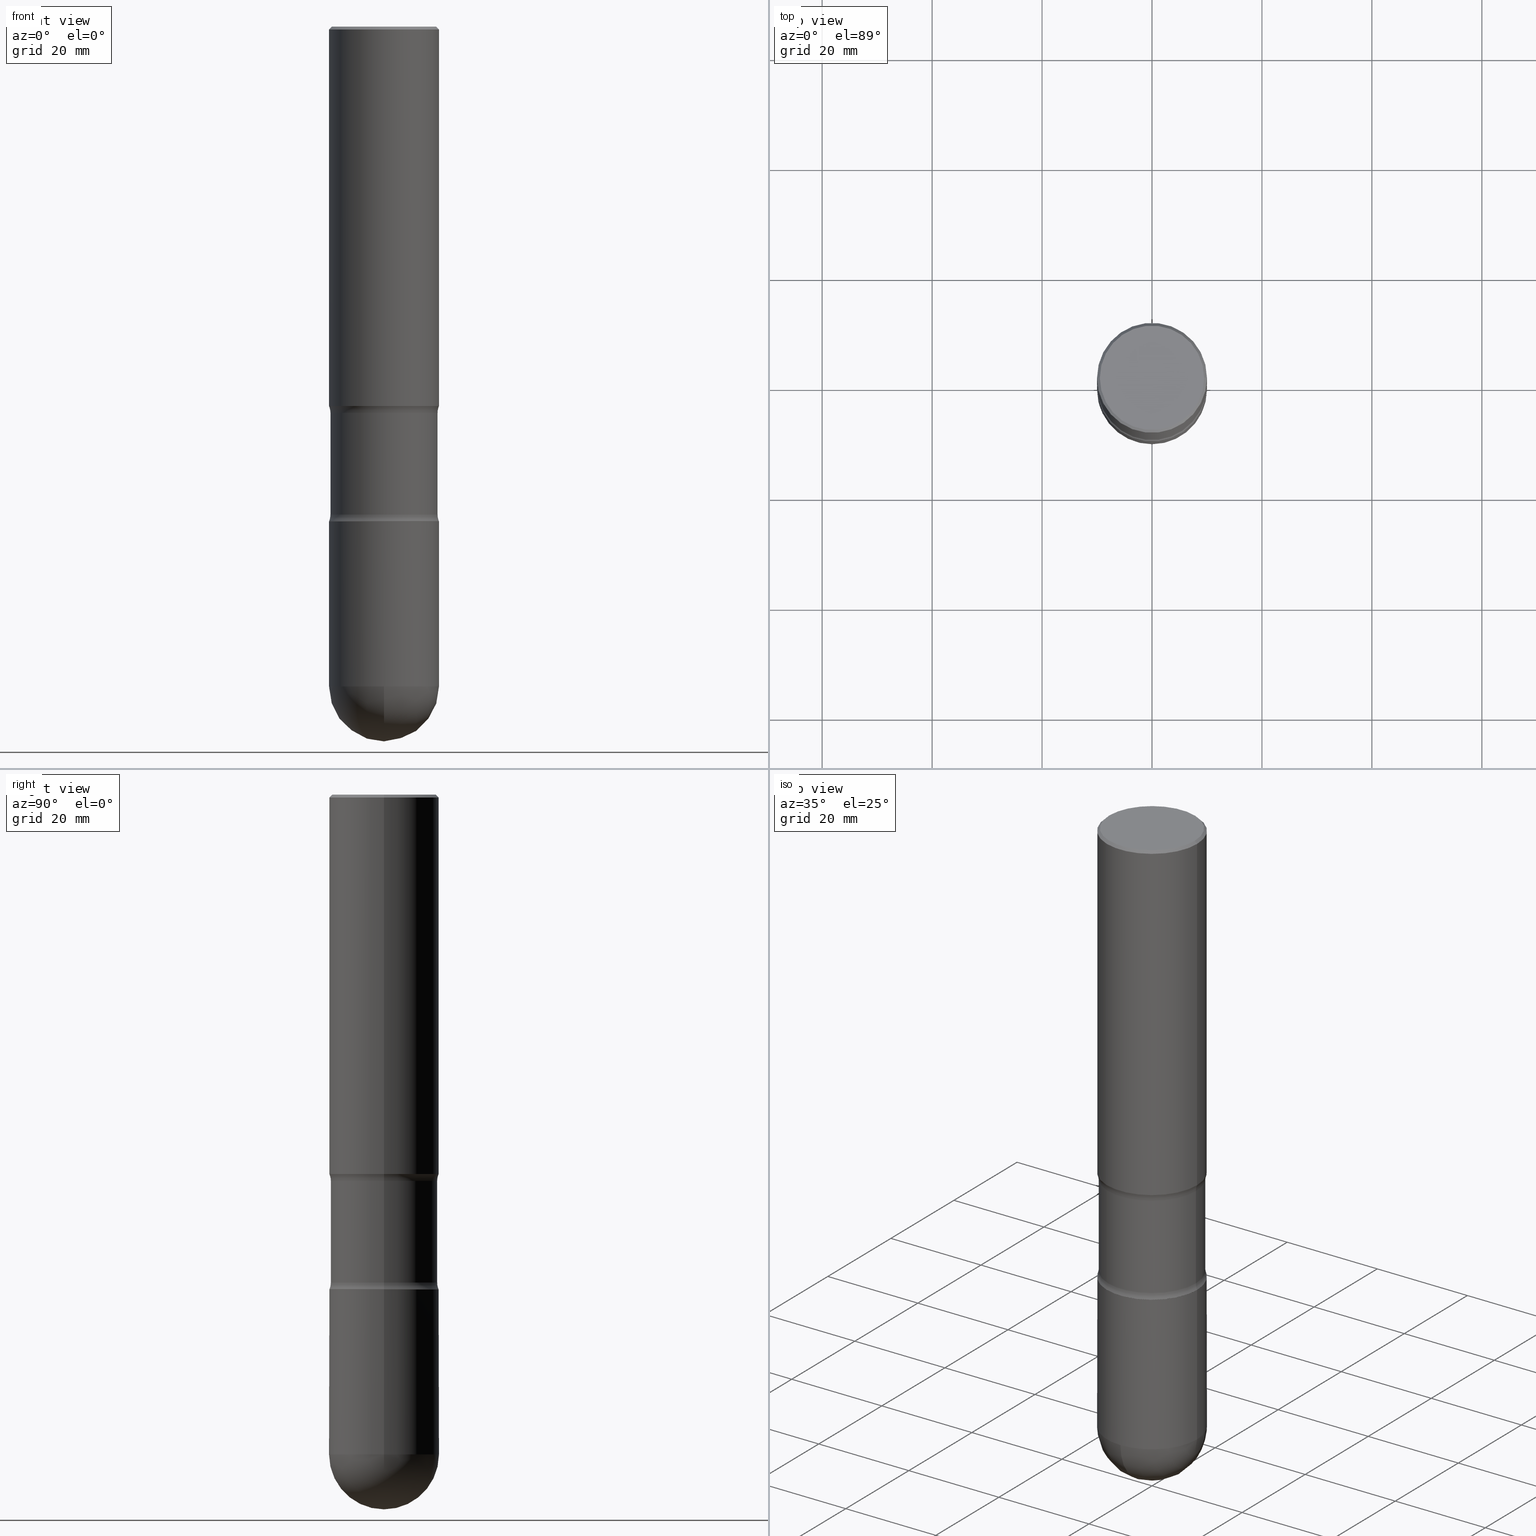
[diagram: canonical four-view strip — front | top / right | iso, engineering-drawing reading convention]
A machine part, canonical four-view strip (front | top / right | iso — engineering-drawing reading convention). The complete STEP part file that produces these views, byte-faithful:
ISO-10303-21;
HEADER;
FILE_DESCRIPTION (( 'STEP AP203' ),
    '1' );
FILE_NAME ('44941.STEP',
    '2024-02-29T19:26:36',
    ( '' ),
    ( '' ),
    'SwSTEP 2.0',
    'SolidWorks 2023',
    '' );
FILE_SCHEMA (( 'CONFIG_CONTROL_DESIGN' ));
ENDSEC;

DATA;
#1 = CARTESIAN_POINT ( 'NONE',  ( 8.665029620955795190E-29, -1.237136582792291865E-14, -3.543300000000000338 ) ) ;
#2 = EDGE_CURVE ( 'NONE', #97, #558, #458, .T. ) ;
#3 = FACE_OUTER_BOUND ( 'NONE', #158, .T. ) ;
#4 = PERSON_AND_ORGANIZATION_ROLE ( 'design_supplier' ) ;
#5 = CARTESIAN_POINT ( 'NONE',  ( -0.3936999999999992172, -1.163585338188923205E-14, -4.724399999999998379 ) ) ;
#6 = FACE_OUTER_BOUND ( 'NONE', #95, .T. ) ;
#7 = PERSON_AND_ORGANIZATION ( #151, #236 ) ;
#8 = DIRECTION ( 'NONE',  ( -2.445468806185136597E-29, 3.491481338843145583E-15, 1.000000000000000000 ) ) ;
#9 = AXIS2_PLACEMENT_3D ( 'NONE', #313, #453, #484 ) ;
#10 = SECURITY_CLASSIFICATION ( '', '', #346 ) ;
#11 = EDGE_CURVE ( 'NONE', #360, #491, #340, .T. ) ;
#12 = CARTESIAN_POINT ( 'NONE',  ( 0.3935498943860055165, -1.507009244066200089E-14, -3.542950105613994261 ) ) ;
#13 = DIRECTION ( 'NONE',  ( -1.000000000000000000, 6.982962677686266711E-15, 0.000000000000000000 ) ) ;
#14 = DIRECTION ( 'NONE',  ( -1.000000000000000000, 6.982962677686265922E-15, -4.883557194083112340E-29 ) ) ;
#15 = VECTOR ( 'NONE', #81, 39.37007874015748143 ) ;
#16 = LOCAL_TIME ( 14, 26, 36.00000000000000000, #88 ) ;
#17 = PLANE ( 'NONE',  #523 ) ;
#18 = ORIENTED_EDGE ( 'NONE', *, *, #221, .T. ) ;
#19 = ADVANCED_FACE ( 'NONE', ( #248 ), #119, .T. ) ;
#20 = CARTESIAN_POINT ( 'NONE',  ( 0.000000000000000000, 0.000000000000000000, 0.000000000000000000 ) ) ;
#21 = ORIENTED_EDGE ( 'NONE', *, *, #153, .T. ) ;
#22 = CC_DESIGN_PERSON_AND_ORGANIZATION_ASSIGNMENT ( #296, #4, ( #351 ) ) ;
#23 = EDGE_LOOP ( 'NONE', ( #98, #495, #455, #517 ) ) ;
#24 = LINE ( 'NONE', #452, #293 ) ;
#25 = EDGE_LOOP ( 'NONE', ( #259, #551, #366, #364 ) ) ;
#26 = ADVANCED_FACE ( 'NONE', ( #6 ), #77, .F. ) ;
#27 = APPROVAL_ROLE ( '' ) ;
#28 = ORIENTED_EDGE ( 'NONE', *, *, #2, .T. ) ;
#29 = CARTESIAN_POINT ( 'NONE',  ( -0.5084999999999878506, -6.106449497829532590E-15, -2.765956647682592084 ) ) ;
#30 = ORIENTED_EDGE ( 'NONE', *, *, #107, .T. ) ;
#31 = AXIS2_PLACEMENT_3D ( 'NONE', #76, #525, #206 ) ;
#32 = AXIS2_PLACEMENT_3D ( 'NONE', #343, #8, #434 ) ;
#33 = CYLINDRICAL_SURFACE ( 'NONE', #324, 0.3936999999999998279 ) ;
#34 = AXIS2_PLACEMENT_3D ( 'NONE', #477, #234, #553 ) ;
#35 = ADVANCED_FACE ( 'NONE', ( #298 ), #545, .T. ) ;
#36 = DIRECTION ( 'NONE',  ( 0.000000000000000000, 0.000000000000000000, 1.000000000000000000 ) ) ;
#37 = DIRECTION ( 'NONE',  ( 2.445468806185136597E-29, -3.491481338843145583E-15, -1.000000000000000000 ) ) ;
#38 = CARTESIAN_POINT ( 'NONE',  ( -0.3834999999999994524, -9.693399641030237513E-15, -3.543300000000000338 ) ) ;
#39 = DATE_AND_TIME ( #429, #314 ) ;
#40 = EDGE_CURVE ( 'NONE', #457, #244, #548, .T. ) ;
#41 = DIRECTION ( 'NONE',  ( 1.000000000000000000, -6.982962677686265922E-15, 0.000000000000000000 ) ) ;
#42 = AXIS2_PLACEMENT_3D ( 'NONE', #74, #526, #440 ) ;
#43 = AXIS2_PLACEMENT_3D ( 'NONE', #450, #463, #399 ) ;
#44 = CALENDAR_DATE ( 2024, 29, 2 ) ;
#45 = DIRECTION ( 'NONE',  ( -6.982962677686265133E-15, -1.000000000000000000, 4.163344669033682734E-15 ) ) ;
#46 = CC_DESIGN_PERSON_AND_ORGANIZATION_ASSIGNMENT ( #522, #303, ( #10 ) ) ;
#47 = DIRECTION ( 'NONE',  ( 6.860497997771531562E-15, 1.000000000000000000, -3.491481338843145583E-15 ) ) ;
#48 = ORIENTED_EDGE ( 'NONE', *, *, #114, .T. ) ;
#49 = FACE_OUTER_BOUND ( 'NONE', #243, .T. ) ;
#50 = AXIS2_PLACEMENT_3D ( 'NONE', #508, #279, #192 ) ;
#51 = AXIS2_PLACEMENT_3D ( 'NONE', #271, #415, #106 ) ;
#52 = AXIS2_PLACEMENT_3D ( 'NONE', #57, #460, #363 ) ;
#53 = PRODUCT_DEFINITION ( 'UNKNOWN', '', #351, #61 ) ;
#54 = CARTESIAN_POINT ( 'NONE',  ( -0.3936999999999996613, 2.679362779428216763E-15, -0.02000000000000033348 ) ) ;
#55 = ORIENTED_EDGE ( 'NONE', *, *, #232, .T. ) ;
#56 = FACE_OUTER_BOUND ( 'NONE', #412, .T. ) ;
#57 = CARTESIAN_POINT ( 'NONE',  ( 8.665029620955795190E-29, -1.237136582792291865E-14, -3.543300000000000338 ) ) ;
#58 = EDGE_CURVE ( 'NONE', #409, #287, #479, .T. ) ;
#59 = AXIS2_PLACEMENT_3D ( 'NONE', #520, #447, #220 ) ;
#60 = CARTESIAN_POINT ( 'NONE',  ( 0.3931999999999993833, -1.511706675278915255E-14, -3.543300000000000338 ) ) ;
#61 = DESIGN_CONTEXT ( 'detailed design', #138, 'design' ) ;
#62 = DIRECTION ( 'NONE',  ( -0.7071067811864094610, 7.493145998869855600E-15, 0.7071067811866855735 ) ) ;
#63 = EDGE_CURVE ( 'NONE', #287, #409, #349, .T. ) ;
#64 = AXIS2_PLACEMENT_3D ( 'NONE', #67, #466, #374 ) ;
#65 = CONICAL_SURFACE ( 'NONE', #229, 0.3936999999999996613, 0.7853981633974397303 ) ;
#66 = CARTESIAN_POINT ( 'NONE',  ( 4.890937612370354609E-31, -6.982962677686407473E-17, -0.02000000000000033348 ) ) ;
#67 = CARTESIAN_POINT ( 'NONE',  ( 8.664173965149357956E-29, -1.237014417820361336E-14, -3.542950105613994261 ) ) ;
#68 = ORIENTED_EDGE ( 'NONE', *, *, #496, .F. ) ;
#69 = VERTEX_POINT ( 'NONE', #162 ) ;
#70 = DIRECTION ( 'NONE',  ( 2.445468806185136877E-29, -3.491481338843145188E-15, -1.000000000000000000 ) ) ;
#71 = ADVANCED_BREP_SHAPE_REPRESENTATION ( '44941', ( #519, #301, #498 ), #191 ) ;
#72 = DIRECTION ( 'NONE',  ( -2.445468806185136877E-29, 3.491481338843145188E-15, 1.000000000000000000 ) ) ;
#73 = EDGE_CURVE ( 'NONE', #423, #360, #276, .T. ) ;
#74 = CARTESIAN_POINT ( 'NONE',  ( 0.000000000000000000, 0.000000000000000000, 0.000000000000000000 ) ) ;
#75 = ORIENTED_EDGE ( 'NONE', *, *, #73, .F. ) ;
#76 = CARTESIAN_POINT ( 'NONE',  ( 8.665029620955795190E-29, -1.237136582792291865E-14, -3.543300000000000338 ) ) ;
#77 = TOROIDAL_SURFACE ( 'NONE', #155, 0.5084999999999878506, 0.1249999999999883843 ) ;
#78 = AXIS2_PLACEMENT_3D ( 'NONE', #483, #530, #528 ) ;
#79 = DIRECTION ( 'NONE',  ( 2.438088387897960049E-29, -3.491481338843145188E-15, -1.000000000000000000 ) ) ;
#80 = COORDINATED_UNIVERSAL_TIME_OFFSET ( 5, 0, .BEHIND. ) ;
#81 = DIRECTION ( 'NONE',  ( 2.445468806185136877E-29, -3.491481338843145188E-15, -1.000000000000000000 ) ) ;
#82 = CC_DESIGN_PERSON_AND_ORGANIZATION_ASSIGNMENT ( #7, #178, ( #351 ) ) ;
#83 = FACE_OUTER_BOUND ( 'NONE', #147, .T. ) ;
#84 = CARTESIAN_POINT ( 'NONE',  ( 1.145236913752607900E-28, -1.663979747067784844E-14, -4.724399999999999267 ) ) ;
#85 = AXIS2_PLACEMENT_3D ( 'NONE', #390, #257, #441 ) ;
#86 = APPROVAL_ROLE ( '' ) ;
#87 = CARTESIAN_POINT ( 'NONE',  ( 8.665029620955795190E-29, -1.237136582792291865E-14, -3.543300000000000338 ) ) ;
#88 = COORDINATED_UNIVERSAL_TIME_OFFSET ( 5, 0, .BEHIND. ) ;
#89 = DIRECTION ( 'NONE',  ( 1.000000000000000000, -6.982962677686267499E-15, 0.000000000000000000 ) ) ;
#90 = ADVANCED_FACE ( 'NONE', ( #108 ), #103, .F. ) ;
#91 = CARTESIAN_POINT ( 'NONE',  ( 4.890937612370354609E-31, -6.982962677686407473E-17, -0.02000000000000033348 ) ) ;
#92 = AXIS2_PLACEMENT_3D ( 'NONE', #375, #462, #327 ) ;
#93 = FACE_OUTER_BOUND ( 'NONE', #426, .T. ) ;
#94 = ORIENTED_EDGE ( 'NONE', *, *, #554, .F. ) ;
#95 = EDGE_LOOP ( 'NONE', ( #371, #213, #321, #534 ) ) ;
#96 = DIRECTION ( 'NONE',  ( -1.000000000000000000, 6.982962677686266711E-15, -4.876176775795935793E-29 ) ) ;
#97 = VERTEX_POINT ( 'NONE', #425 ) ;
#98 = ORIENTED_EDGE ( 'NONE', *, *, #395, .F. ) ;
#99 = EDGE_CURVE ( 'NONE', #270, #491, #459, .T. ) ;
#100 = LINE ( 'NONE', #401, #157 ) ;
#101 = ORIENTED_EDGE ( 'NONE', *, *, #99, .F. ) ;
#102 = ORIENTED_EDGE ( 'NONE', *, *, #489, .T. ) ;
#103 = TOROIDAL_SURFACE ( 'NONE', #468, 0.5084999999999878506, 0.1249999999999883843 ) ;
#104 = CC_DESIGN_SECURITY_CLASSIFICATION ( #10, ( #351 ) ) ;
#105 = ORIENTED_EDGE ( 'NONE', *, *, #344, .F. ) ;
#106 = DIRECTION ( 'NONE',  ( 7.105427357601001070E-15, 1.000000000000000000, 0.000000000000000000 ) ) ;
#107 = EDGE_CURVE ( 'NONE', #376, #457, #539, .T. ) ;
#108 = FACE_OUTER_BOUND ( 'NONE', #23, .T. ) ;
#109 = CARTESIAN_POINT ( 'NONE',  ( 6.643116012001927000E-29, -9.484609056967409909E-15, -2.716500000000001691 ) ) ;
#110 = PERSON_AND_ORGANIZATION ( #151, #236 ) ;
#111 = CIRCLE ( 'NONE', #435, 0.3936999999999992172 ) ;
#112 = CIRCLE ( 'NONE', #198, 0.3936999999999996613 ) ;
#113 = LINE ( 'NONE', #238, #144 ) ;
#114 = EDGE_CURVE ( 'NONE', #356, #355, #292, .T. ) ;
#115 = EDGE_LOOP ( 'NONE', ( #471, #152, #432, #240 ) ) ;
#116 = CALENDAR_DATE ( 2024, 29, 2 ) ;
#117 = AXIS2_PLACEMENT_3D ( 'NONE', #389, #47, #126 ) ;
#118 = EDGE_CURVE ( 'NONE', #203, #226, #560, .T. ) ;
#119 = CYLINDRICAL_SURFACE ( 'NONE', #396, 0.3936999999999998279 ) ;
#120 = DIRECTION ( 'NONE',  ( -1.000000000000000000, 6.982962677686266711E-15, 0.000000000000000000 ) ) ;
#121 = DATE_TIME_ROLE ( 'creation_date' ) ;
#122 = DIRECTION ( 'NONE',  ( 2.445468806185136597E-29, -3.491481338843145583E-15, -1.000000000000000000 ) ) ;
#123 = ORIENTED_EDGE ( 'NONE', *, *, #264, .T. ) ;
#124 = DATE_AND_TIME ( #116, #267 ) ;
#125 = CLOSED_SHELL ( 'NONE', ( #237, #35, #180, #143, #444 ) ) ;
#126 = DIRECTION ( 'NONE',  ( -1.000000000000000000, 6.860497997771534718E-15, 0.000000000000000000 ) ) ;
#127 = CIRCLE ( 'NONE', #369, 0.3931999999999993833 ) ;
#128 = VECTOR ( 'NONE', #70, 39.37007874015748143 ) ;
#129 = CARTESIAN_POINT ( 'NONE',  ( 6.764060701168190302E-29, -9.657286019432915814E-15, -2.765956647682592084 ) ) ;
#130 = APPROVAL_ROLE ( '' ) ;
#131 = ADVANCED_FACE ( 'NONE', ( #83 ), #141, .T. ) ;
#132 = CYLINDRICAL_SURFACE ( 'NONE', #380, 0.3834999999999994524 ) ;
#133 = ORIENTED_EDGE ( 'NONE', *, *, #280, .T. ) ;
#134 = FACE_OUTER_BOUND ( 'NONE', #187, .T. ) ;
#135 = EDGE_LOOP ( 'NONE', ( #21, #316, #75, #361 ) ) ;
#136 = FACE_OUTER_BOUND ( 'NONE', #167, .T. ) ;
#137 = DIRECTION ( 'NONE',  ( -1.000000000000000000, 6.982962677686268288E-15, 0.000000000000000000 ) ) ;
#138 = APPLICATION_CONTEXT ( 'configuration controlled 3d designs of mechanical parts and assemblies' ) ;
#139 = DIRECTION ( 'NONE',  ( 1.000000000000000000, -6.982962677686267499E-15, 0.000000000000000000 ) ) ;
#140 = ORIENTED_EDGE ( 'NONE', *, *, #329, .T. ) ;
#141 = CONICAL_SURFACE ( 'NONE', #299, 0.3936999999999996613, 0.7853981633974397303 ) ;
#142 = TOROIDAL_SURFACE ( 'NONE', #34, 0.5084999999999989528, 0.1249999999999993339 ) ;
#143 = ADVANCED_FACE ( 'NONE', ( #136 ), #289, .T. ) ;
#144 = VECTOR ( 'NONE', #333, 39.37007874015748143 ) ;
#145 = DIRECTION ( 'NONE',  ( -6.982962677686265922E-15, -1.000000000000000000, 0.000000000000000000 ) ) ;
#146 = ORIENTED_EDGE ( 'NONE', *, *, #40, .F. ) ;
#147 = EDGE_LOOP ( 'NONE', ( #320, #188, #133, #68 ) ) ;
#148 = APPROVAL ( #214, 'UNSPECIFIED' ) ;
#149 = DIRECTION ( 'NONE',  ( 0.7071067811864094610, -2.468850131080810684E-15, 0.7071067811866855735 ) ) ;
#150 = DIRECTION ( 'NONE',  ( -2.445468806185136597E-29, 3.491481338843145583E-15, 1.000000000000000000 ) ) ;
#151 = PERSON ( 'UNSPECIFIED', 'UNSPECIFIED', 'UNSPECIFIED', ('UNSPECIFIED'), ('UNSPECIFIED'), ('UNSPECIFIED') ) ;
#152 = ORIENTED_EDGE ( 'NONE', *, *, #421, .T. ) ;
#153 = EDGE_CURVE ( 'NONE', #537, #407, #183, .T. ) ;
#154 = CARTESIAN_POINT ( 'NONE',  ( 0.3937000000000000499, -7.478197403594786673E-15, -2.716500000000001691 ) ) ;
#155 = AXIS2_PLACEMENT_3D ( 'NONE', #488, #256, #348 ) ;
#156 = AXIS2_PLACEMENT_3D ( 'NONE', #485, #196, #494 ) ;
#157 = VECTOR ( 'NONE', #274, 39.37007874015748143 ) ;
#158 = EDGE_LOOP ( 'NONE', ( #168, #416, #101, #516 ) ) ;
#159 = CARTESIAN_POINT ( 'NONE',  ( 8.664173965149357956E-29, -1.237014417820361336E-14, -3.542950105613994261 ) ) ;
#160 = DIRECTION ( 'NONE',  ( 1.000000000000000000, -6.982962677686265133E-15, 4.883557194083111780E-29 ) ) ;
#161 = DIRECTION ( 'NONE',  ( 2.445468806185136597E-29, -3.491481338843145583E-15, -1.000000000000000000 ) ) ;
#162 = CARTESIAN_POINT ( 'NONE',  ( 1.239831625811866811E-28, -1.803850084602160544E-14, -5.118099999999998317 ) ) ;
#163 = ADVANCED_FACE ( 'NONE', ( #3 ), #33, .T. ) ;
#164 = CIRCLE ( 'NONE', #51, 0.3936999999999992728 ) ;
#165 = ORIENTED_EDGE ( 'NONE', *, *, #344, .T. ) ;
#166 = CIRCLE ( 'NONE', #359, 0.3736999999999996991 ) ;
#167 = EDGE_LOOP ( 'NONE', ( #393, #55, #311, #102, #306 ) ) ;
#168 = ORIENTED_EDGE ( 'NONE', *, *, #73, .T. ) ;
#169 =( NAMED_UNIT ( * ) SI_UNIT ( $, .STERADIAN. ) SOLID_ANGLE_UNIT ( ) );
#170 = APPROVAL_DATE_TIME ( #124, #148 ) ;
#171 = EDGE_CURVE ( 'NONE', #287, #203, #282, .T. ) ;
#172 = PRODUCT ( '44941', '44941', '', ( #556 ) ) ;
#173 = COORDINATED_UNIVERSAL_TIME_OFFSET ( 5, 0, .BEHIND. ) ;
#174 = CIRCLE ( 'NONE', #32, 0.3936999999999992172 ) ;
#175 = CARTESIAN_POINT ( 'NONE',  ( 2.745700924866322251E-15, 0.3931999999999870044, -3.543300000000002115 ) ) ;
#176 = CC_DESIGN_PERSON_AND_ORGANIZATION_ASSIGNMENT ( #384, #331, ( #172 ) ) ;
#177 = CARTESIAN_POINT ( 'NONE',  ( 1.155337282794105502E-28, -1.649515443723055294E-14, -4.724399999999998379 ) ) ;
#178 = PERSON_AND_ORGANIZATION_ROLE ( 'creator' ) ;
#179 = DIRECTION ( 'NONE',  ( -2.445468806185136597E-29, 3.491481338843145583E-15, 1.000000000000000000 ) ) ;
#180 = ADVANCED_FACE ( 'NONE', ( #134 ), #493, .T. ) ;
#181 = DATE_TIME_ROLE ( 'classification_date' ) ;
#182 = DIRECTION ( 'NONE',  ( 2.445468806185136597E-29, -3.491481338843145583E-15, -1.000000000000000000 ) ) ;
#183 = CIRCLE ( 'NONE', #59, 0.3736999999999996991 ) ;
#184 = CARTESIAN_POINT ( 'NONE',  ( 8.665029620955795190E-29, -1.237136582792291865E-14, -3.543300000000000338 ) ) ;
#185 = FACE_OUTER_BOUND ( 'NONE', #400, .T. ) ;
#186 = EDGE_LOOP ( 'NONE', ( #502, #552, #18, #165 ) ) ;
#187 = EDGE_LOOP ( 'NONE', ( #413, #272, #228, #146 ) ) ;
#188 = ORIENTED_EDGE ( 'NONE', *, *, #402, .T. ) ;
#189 = CARTESIAN_POINT ( 'NONE',  ( 0.3834999999999994524, -1.223693706013417670E-14, -2.765956647682592084 ) ) ;
#190 = AXIS2_PLACEMENT_3D ( 'NONE', #443, #262, #564 ) ;
#191 =( GEOMETRIC_REPRESENTATION_CONTEXT ( 3 ) GLOBAL_UNCERTAINTY_ASSIGNED_CONTEXT ( ( #436 ) ) GLOBAL_UNIT_ASSIGNED_CONTEXT ( ( #521, #383, #169 ) ) REPRESENTATION_CONTEXT ( 'NONE', 'WORKASPACE' ) );
#192 = DIRECTION ( 'NONE',  ( 1.000000000000000000, -6.982962677686267499E-15, 0.000000000000000000 ) ) ;
#193 = CARTESIAN_POINT ( 'NONE',  ( 2.797406750687623649E-15, 0.3936999999999826194, -4.724400000000000155 ) ) ;
#194 = LINE ( 'NONE', #411, #532 ) ;
#195 = VERTEX_POINT ( 'NONE', #215 ) ;
#196 = DIRECTION ( 'NONE',  ( -2.445468806185136597E-29, 3.491481338843145583E-15, 1.000000000000000000 ) ) ;
#197 = CIRCLE ( 'NONE', #312, 0.1249999999999884259 ) ;
#198 = AXIS2_PLACEMENT_3D ( 'NONE', #66, #288, #378 ) ;
#199 = ORIENTED_EDGE ( 'NONE', *, *, #305, .T. ) ;
#200 = LENGTH_MEASURE_WITH_UNIT ( LENGTH_MEASURE( 0.02539999999999999897 ), #428 );
#201 = EDGE_CURVE ( 'NONE', #195, #376, #174, .T. ) ;
#202 = ORIENTED_EDGE ( 'NONE', *, *, #554, .T. ) ;
#203 = VERTEX_POINT ( 'NONE', #302 ) ;
#204 = CC_DESIGN_APPROVAL ( #408, ( #351 ) ) ;
#205 = FACE_OUTER_BOUND ( 'NONE', #186, .T. ) ;
#206 = DIRECTION ( 'NONE',  ( -1.000000000000000000, 6.982962677686265922E-15, 0.000000000000000000 ) ) ;
#207 = ADVANCED_FACE ( 'NONE', ( #251 ), #132, .T. ) ;
#208 = DIRECTION ( 'NONE',  ( 1.000000000000000000, 0.000000000000000000, 0.000000000000000000 ) ) ;
#209 = DIRECTION ( 'NONE',  ( -1.000000000000000000, 6.982962677686266711E-15, -4.883557194083112901E-29 ) ) ;
#210 = CYLINDRICAL_SURFACE ( 'NONE', #190, 0.3936999999999992728 ) ;
#211 = TOROIDAL_SURFACE ( 'NONE', #449, 0.5084999999999989528, 0.1249999999999993339 ) ;
#212 = CARTESIAN_POINT ( 'NONE',  ( -0.3936999999999996613, 2.679362779428216763E-15, -0.02000000000000033348 ) ) ;
#213 = ORIENTED_EDGE ( 'NONE', *, *, #114, .F. ) ;
#214 = APPROVAL_STATUS ( 'not_yet_approved' ) ;
#215 = CARTESIAN_POINT ( 'NONE',  ( -2.749192406204962521E-15, -0.3937000000000158151, -4.724399999999996602 ) ) ;
#216 = DIRECTION ( 'NONE',  ( -6.982962677686266711E-15, -1.000000000000000000, 3.491481338843145583E-15 ) ) ;
#217 = DIRECTION ( 'NONE',  ( -1.000000000000000000, 6.982962677686266711E-15, 0.000000000000000000 ) ) ;
#218 = CARTESIAN_POINT ( 'NONE',  ( -0.3834999999999995635, -9.520722678564731608E-15, -3.493843352317408613 ) ) ;
#219 = CIRCLE ( 'NONE', #404, 0.3834999999999995635 ) ;
#220 = DIRECTION ( 'NONE',  ( -1.000000000000000000, 6.982962677686266711E-15, -4.876176775795935793E-29 ) ) ;
#221 = EDGE_CURVE ( 'NONE', #409, #226, #357, .T. ) ;
#222 = DIRECTION ( 'NONE',  ( -1.000000000000000000, 6.982962677686265922E-15, 0.000000000000000000 ) ) ;
#223 = PLANE ( 'NONE',  #52 ) ;
#224 = ORIENTED_EDGE ( 'NONE', *, *, #473, .T. ) ;
#225 = DIRECTION ( 'NONE',  ( 2.445468806185136597E-29, -3.491481338843145583E-15, -1.000000000000000000 ) ) ;
#226 = VERTEX_POINT ( 'NONE', #218 ) ;
#227 = EDGE_LOOP ( 'NONE', ( #513, #336, #224, #422 ) ) ;
#228 = ORIENTED_EDGE ( 'NONE', *, *, #232, .F. ) ;
#229 = AXIS2_PLACEMENT_3D ( 'NONE', #91, #268, #13 ) ;
#230 = CARTESIAN_POINT ( 'NONE',  ( 1.145236913752607900E-28, -1.663979747067784844E-14, -4.724399999999999267 ) ) ;
#231 = CARTESIAN_POINT ( 'NONE',  ( 1.145236913752607900E-28, -1.663979747067784844E-14, -4.724399999999999267 ) ) ;
#232 = EDGE_CURVE ( 'NONE', #244, #195, #111, .T. ) ;
#233 = LINE ( 'NONE', #60, #341 ) ;
#234 = DIRECTION ( 'NONE',  ( 2.445468806185136597E-29, -3.491481338843145583E-15, -1.000000000000000000 ) ) ;
#235 = AXIS2_PLACEMENT_3D ( 'NONE', #159, #239, #420 ) ;
#236 = ORGANIZATION ( 'UNSPECIFIED', 'UNSPECIFIED', '' ) ;
#237 = ADVANCED_FACE ( 'NONE', ( #250 ), #210, .T. ) ;
#238 = CARTESIAN_POINT ( 'NONE',  ( 0.3936999999999996613, -2.770807688499514156E-15, -0.02000000000000033348 ) ) ;
#239 = DIRECTION ( 'NONE',  ( 2.445468806185136597E-29, -3.491481338843145583E-15, -1.000000000000000000 ) ) ;
#240 = ORIENTED_EDGE ( 'NONE', *, *, #339, .F. ) ;
#241 = DIRECTION ( 'NONE',  ( -6.982962677686266711E-15, -1.000000000000000000, 3.491481338843145583E-15 ) ) ;
#242 = CC_DESIGN_DATE_AND_TIME_ASSIGNMENT ( #391, #181, ( #10 ) ) ;
#243 = EDGE_LOOP ( 'NONE', ( #28, #199 ) ) ;
#244 = VERTEX_POINT ( 'NONE', #5 ) ;
#245 = CARTESIAN_POINT ( 'NONE',  ( -0.3931999999999993833, -9.575657891483255189E-15, -3.543300000000000338 ) ) ;
#246 = AXIS2_PLACEMENT_3D ( 'NONE', #175, #79, #490 ) ;
#247 = CC_DESIGN_DATE_AND_TIME_ASSIGNMENT ( #39, #121, ( #53 ) ) ;
#248 = FACE_OUTER_BOUND ( 'NONE', #227, .T. ) ;
#249 = DIRECTION ( 'NONE',  ( 2.445468806185136597E-29, -3.491481338843145583E-15, -1.000000000000000000 ) ) ;
#250 = FACE_OUTER_BOUND ( 'NONE', #410, .T. ) ;
#251 = FACE_OUTER_BOUND ( 'NONE', #562, .T. ) ;
#252 = CONICAL_SURFACE ( 'NONE', #531, 0.3931999999999993833, 0.7853981633972531018 ) ;
#253 = COORDINATED_UNIVERSAL_TIME_OFFSET ( 5, 0, .BEHIND. ) ;
#254 = ADVANCED_FACE ( 'NONE', ( #446 ), #252, .T. ) ;
#255 = DIRECTION ( 'NONE',  ( 2.445468806185136597E-29, -3.491481338843145583E-15, -1.000000000000000000 ) ) ;
#256 = DIRECTION ( 'NONE',  ( 2.445468806185136597E-29, -3.491481338843145583E-15, -1.000000000000000000 ) ) ;
#257 = DIRECTION ( 'NONE',  ( 2.445468806185136597E-29, -3.491481338843145583E-15, -1.000000000000000000 ) ) ;
#258 = CARTESIAN_POINT ( 'NONE',  ( -0.5084999999999989528, -8.647852343853956157E-15, -3.493843352317409945 ) ) ;
#259 = ORIENTED_EDGE ( 'NONE', *, *, #480, .F. ) ;
#260 = DIMENSIONAL_EXPONENTS ( 1.000000000000000000, 0.000000000000000000, 0.000000000000000000, 0.000000000000000000, 0.000000000000000000, 0.000000000000000000, 0.000000000000000000 ) ;
#261 = PERSON_AND_ORGANIZATION_ROLE ( 'creator' ) ;
#262 = DIRECTION ( 'NONE',  ( -2.445468806185136597E-29, 3.491481338843145583E-15, 1.000000000000000000 ) ) ;
#263 = ORIENTED_EDGE ( 'NONE', *, *, #339, .T. ) ;
#264 = EDGE_CURVE ( 'NONE', #269, #332, #266, .T. ) ;
#265 = DIRECTION ( 'NONE',  ( 2.445468806185136597E-29, -3.491481338843145583E-15, -1.000000000000000000 ) ) ;
#266 = CIRCLE ( 'NONE', #505, 0.3936999999999993283 ) ;
#267 = LOCAL_TIME ( 14, 26, 36.00000000000000000, #80 ) ;
#268 = DIRECTION ( 'NONE',  ( 2.445468806185136597E-29, -3.491481338843145583E-15, -1.000000000000000000 ) ) ;
#269 = VERTEX_POINT ( 'NONE', #386 ) ;
#270 = VERTEX_POINT ( 'NONE', #345 ) ;
#271 = CARTESIAN_POINT ( 'NONE',  ( 1.145236913752607900E-28, -1.663979747067784844E-14, -4.724399999999999267 ) ) ;
#272 = ORIENTED_EDGE ( 'NONE', *, *, #480, .T. ) ;
#273 = ORIENTED_EDGE ( 'NONE', *, *, #63, .F. ) ;
#274 = DIRECTION ( 'NONE',  ( 2.445468806185136877E-29, -3.491481338843145188E-15, -1.000000000000000000 ) ) ;
#275 = ADVANCED_FACE ( 'NONE', ( #49 ), #347, .T. ) ;
#276 = CIRCLE ( 'NONE', #92, 0.3936999999999996613 ) ;
#277 = LOCAL_TIME ( 14, 26, 36.00000000000000000, #509 ) ;
#278 = CARTESIAN_POINT ( 'NONE',  ( 6.764060701168190302E-29, -9.657286019432915814E-15, -2.765956647682592084 ) ) ;
#279 = DIRECTION ( 'NONE',  ( -2.445468806185136597E-29, 3.491481338843145583E-15, 1.000000000000000000 ) ) ;
#280 = EDGE_CURVE ( 'NONE', #537, #423, #398, .T. ) ;
#281 = DATE_AND_TIME ( #465, #277 ) ;
#282 = CIRCLE ( 'NONE', #117, 0.1249999999999993477 ) ;
#283 = ORIENTED_EDGE ( 'NONE', *, *, #40, .T. ) ;
#284 = AXIS2_PLACEMENT_3D ( 'NONE', #538, #225, #137 ) ;
#285 = ORIENTED_EDGE ( 'NONE', *, *, #395, .T. ) ;
#286 = FACE_OUTER_BOUND ( 'NONE', #317, .T. ) ;
#287 = VERTEX_POINT ( 'NONE', #12 ) ;
#288 = DIRECTION ( 'NONE',  ( 2.445468806185136597E-29, -3.491481338843145583E-15, -1.000000000000000000 ) ) ;
#289 = CYLINDRICAL_SURFACE ( 'NONE', #42, 0.3936999999999992728 ) ;
#290 = ADVANCED_FACE ( 'NONE', ( #535 ), #427, .T. ) ;
#291 = CARTESIAN_POINT ( 'NONE',  ( 0.3936999999999998279, -1.507234388964556951E-14, -3.543300000000000338 ) ) ;
#292 = CIRCLE ( 'NONE', #9, 0.3834999999999994524 ) ;
#293 = VECTOR ( 'NONE', #62, 39.37007874015748143 ) ;
#294 = DIRECTION ( 'NONE',  ( -0.7071067811865414665, 2.468850131082193557E-15, -0.7071067811865535679 ) ) ;
#295 = EDGE_CURVE ( 'NONE', #356, #226, #431, .T. ) ;
#296 = PERSON_AND_ORGANIZATION ( #151, #236 ) ;
#297 = DIRECTION ( 'NONE',  ( -1.000000000000000000, 6.982962677686265922E-15, 0.000000000000000000 ) ) ;
#298 = FACE_OUTER_BOUND ( 'NONE', #25, .T. ) ;
#299 = AXIS2_PLACEMENT_3D ( 'NONE', #563, #37, #430 ) ;
#300 = CALENDAR_DATE ( 2024, 29, 2 ) ;
#301 = MANIFOLD_SOLID_BREP ( 'Body-Move/Copy2[2]', #379 ) ;
#302 = CARTESIAN_POINT ( 'NONE',  ( 0.3834999999999995635, -1.355898842459054111E-14, -3.493843352317408613 ) ) ;
#303 = PERSON_AND_ORGANIZATION_ROLE ( 'classification_officer' ) ;
#304 = DIRECTION ( 'NONE',  ( 1.000000000000000000, -6.982962677686268288E-15, 0.000000000000000000 ) ) ;
#305 = EDGE_CURVE ( 'NONE', #558, #97, #127, .T. ) ;
#306 = ORIENTED_EDGE ( 'NONE', *, *, #264, .F. ) ;
#307 = DIRECTION ( 'NONE',  ( 1.000000000000000000, -6.982962677686265922E-15, 4.876176775795935793E-29 ) ) ;
#308 = ORIENTED_EDGE ( 'NONE', *, *, #402, .F. ) ;
#309 = CARTESIAN_POINT ( 'NONE',  ( 8.665029620955795190E-29, -1.237136582792291865E-14, -3.543300000000000338 ) ) ;
#310 = DIRECTION ( 'NONE',  ( 2.445468806185136597E-29, -3.491481338843145583E-15, -1.000000000000000000 ) ) ;
#311 = ORIENTED_EDGE ( 'NONE', *, *, #201, .T. ) ;
#312 = AXIS2_PLACEMENT_3D ( 'NONE', #501, #456, #499 ) ;
#313 = CARTESIAN_POINT ( 'NONE',  ( 6.764060701168190302E-29, -9.657286019432915814E-15, -2.765956647682592084 ) ) ;
#314 = LOCAL_TIME ( 14, 26, 36.00000000000000000, #173 ) ;
#315 = ORIENTED_EDGE ( 'NONE', *, *, #118, .T. ) ;
#316 = ORIENTED_EDGE ( 'NONE', *, *, #507, .T. ) ;
#317 = EDGE_LOOP ( 'NONE', ( #273, #403, #315, #454 ) ) ;
#318 = CARTESIAN_POINT ( 'NONE',  ( 0.3936999999999996613, -2.770807688499514156E-15, -0.02000000000000033348 ) ) ;
#319 = CARTESIAN_POINT ( 'NONE',  ( 0.3736999999999996991, -2.667287895133366781E-15, 1.845150283989421456E-29 ) ) ;
#320 = ORIENTED_EDGE ( 'NONE', *, *, #507, .F. ) ;
#321 = ORIENTED_EDGE ( 'NONE', *, *, #536, .T. ) ;
#322 = APPROVAL ( #417, 'UNSPECIFIED' ) ;
#323 = CARTESIAN_POINT ( 'NONE',  ( 2.609533152651355437E-15, 0.3736999999999996991, -1.300498063835582025E-15 ) ) ;
#324 = AXIS2_PLACEMENT_3D ( 'NONE', #352, #182, #120 ) ;
#325 = CC_DESIGN_APPROVAL ( #322, ( #53 ) ) ;
#326 = APPLICATION_PROTOCOL_DEFINITION ( 'international standard', 'config_control_design', 1994, #138 ) ;
#327 = DIRECTION ( 'NONE',  ( -1.000000000000000000, 6.982962677686266711E-15, 0.000000000000000000 ) ) ;
#328 = ORIENTED_EDGE ( 'NONE', *, *, #63, .T. ) ;
#329 = EDGE_CURVE ( 'NONE', #332, #269, #335, .T. ) ;
#330 = ORIENTED_EDGE ( 'NONE', *, *, #2, .F. ) ;
#331 = PERSON_AND_ORGANIZATION_ROLE ( 'design_owner' ) ;
#332 = VERTEX_POINT ( 'NONE', #358 ) ;
#333 = DIRECTION ( 'NONE',  ( 0.7071067811865414665, -7.319954787623235535E-15, -0.7071067811865535679 ) ) ;
#334 = ORIENTED_EDGE ( 'NONE', *, *, #295, .T. ) ;
#335 = CIRCLE ( 'NONE', #156, 0.3936999999999993283 ) ;
#336 = ORIENTED_EDGE ( 'NONE', *, *, #496, .T. ) ;
#337 = APPROVAL_PERSON_ORGANIZATION ( #110, #322, #27 ) ;
#338 = DIRECTION ( 'NONE',  ( 1.000000000000000000, -6.982962677686265133E-15, 0.000000000000000000 ) ) ;
#339 = EDGE_CURVE ( 'NONE', #97, #287, #233, .T. ) ;
#340 = LINE ( 'NONE', #291, #504 ) ;
#341 = VECTOR ( 'NONE', #149, 39.37007874015748143 ) ;
#342 = PERSON_AND_ORGANIZATION ( #151, #236 ) ;
#343 = CARTESIAN_POINT ( 'NONE',  ( 1.155337282794105502E-28, -1.649515443723055294E-14, -4.724399999999998379 ) ) ;
#344 = EDGE_CURVE ( 'NONE', #226, #203, #219, .T. ) ;
#345 = CARTESIAN_POINT ( 'NONE',  ( -0.3937000000000000499, -6.735416650762325903E-15, -2.716500000000001691 ) ) ;
#346 = SECURITY_CLASSIFICATION_LEVEL ( 'unclassified' ) ;
#347 = PLANE ( 'NONE',  #246 ) ;
#348 = DIRECTION ( 'NONE',  ( -1.000000000000000000, 6.982962677686266711E-15, -4.883557194083112901E-29 ) ) ;
#349 = CIRCLE ( 'NONE', #235, 0.3935498943860055165 ) ;
#350 = PERSON_AND_ORGANIZATION ( #151, #236 ) ;
#351 = PRODUCT_DEFINITION_FORMATION_WITH_SPECIFIED_SOURCE ( 'ANY', '', #172, .NOT_KNOWN. ) ;
#352 = CARTESIAN_POINT ( 'NONE',  ( 8.665029620955795190E-29, -1.237136582792291865E-14, -3.543300000000000338 ) ) ;
#353 = DIRECTION ( 'NONE',  ( 1.000000000000000000, -6.982962677686265922E-15, 0.000000000000000000 ) ) ;
#354 = CYLINDRICAL_SURFACE ( 'NONE', #284, 0.3834999999999994524 ) ;
#355 = VERTEX_POINT ( 'NONE', #189 ) ;
#356 = VERTEX_POINT ( 'NONE', #543 ) ;
#357 = CIRCLE ( 'NONE', #448, 0.1249999999999993477 ) ;
#358 = CARTESIAN_POINT ( 'NONE',  ( 0.3936999999999993283, -1.512055823412799713E-14, -3.543300000000000338 ) ) ;
#359 = AXIS2_PLACEMENT_3D ( 'NONE', #20, #310, #96 ) ;
#360 = VERTEX_POINT ( 'NONE', #318 ) ;
#361 = ORIENTED_EDGE ( 'NONE', *, *, #280, .F. ) ;
#362 = EDGE_CURVE ( 'NONE', #69, #457, #164, .T. ) ;
#363 = DIRECTION ( 'NONE',  ( -1.000000000000000000, 6.982962677686265922E-15, -4.876176775795935793E-29 ) ) ;
#364 = ORIENTED_EDGE ( 'NONE', *, *, #201, .F. ) ;
#365 = DIRECTION ( 'NONE',  ( -2.445468806185136877E-29, 3.491481338843145188E-15, 1.000000000000000000 ) ) ;
#366 = ORIENTED_EDGE ( 'NONE', *, *, #107, .F. ) ;
#367 = EDGE_CURVE ( 'NONE', #355, #491, #197, .T. ) ;
#368 = DIRECTION ( 'NONE',  ( 2.445468806185136597E-29, -3.491481338843145583E-15, -1.000000000000000000 ) ) ;
#369 = AXIS2_PLACEMENT_3D ( 'NONE', #1, #122, #297 ) ;
#370 = LOCAL_TIME ( 14, 26, 36.00000000000000000, #253 ) ;
#371 = ORIENTED_EDGE ( 'NONE', *, *, #367, .F. ) ;
#372 = ORIENTED_EDGE ( 'NONE', *, *, #329, .F. ) ;
#373 = CARTESIAN_POINT ( 'NONE',  ( 0.3834999999999994524, -1.500236681006829705E-14, -3.543300000000000338 ) ) ;
#374 = DIRECTION ( 'NONE',  ( -1.000000000000000000, 6.982962677686269077E-15, 0.000000000000000000 ) ) ;
#375 = CARTESIAN_POINT ( 'NONE',  ( 4.890937612370354609E-31, -6.982962677686407473E-17, -0.02000000000000033348 ) ) ;
#376 = VERTEX_POINT ( 'NONE', #540 ) ;
#377 = APPLICATION_PROTOCOL_DEFINITION ( 'international standard', 'config_control_design', 1994, #518 ) ;
#378 = DIRECTION ( 'NONE',  ( -1.000000000000000000, 6.982962677686266711E-15, 0.000000000000000000 ) ) ;
#379 = CLOSED_SHELL ( 'NONE', ( #290, #546, #207, #90, #163, #385, #131, #19, #26, #451, #529, #254, #275, #382 ) ) ;
#380 = AXIS2_PLACEMENT_3D ( 'NONE', #87, #255, #392 ) ;
#381 = AXIS2_PLACEMENT_3D ( 'NONE', #231, #14, #145 ) ;
#382 = ADVANCED_FACE ( 'NONE', ( #93 ), #17, .T. ) ;
#383 =( NAMED_UNIT ( * ) PLANE_ANGLE_UNIT ( ) SI_UNIT ( $, .RADIAN. ) );
#384 = PERSON_AND_ORGANIZATION ( #151, #236 ) ;
#385 = ADVANCED_FACE ( 'NONE', ( #550 ), #65, .T. ) ;
#386 = CARTESIAN_POINT ( 'NONE',  ( -0.3936999999999993283, -1.163585338188922574E-14, -3.543300000000000338 ) ) ;
#387 = AXIS2_PLACEMENT_3D ( 'NONE', #541, #150, #139 ) ;
#388 = VECTOR ( 'NONE', #72, 39.37007874015748143 ) ;
#389 = CARTESIAN_POINT ( 'NONE',  ( 0.5084999999999989528, -1.568725209732423102E-14, -3.493843352317409945 ) ) ;
#390 = CARTESIAN_POINT ( 'NONE',  ( 8.544084931789529647E-29, -1.219868886545741117E-14, -3.493843352317408613 ) ) ;
#391 = DATE_AND_TIME ( #44, #16 ) ;
#392 = DIRECTION ( 'NONE',  ( -1.000000000000000000, 6.982962677686268288E-15, 0.000000000000000000 ) ) ;
#393 = ORIENTED_EDGE ( 'NONE', *, *, #512, .F. ) ;
#394 = ORIENTED_EDGE ( 'NONE', *, *, #118, .F. ) ;
#395 = EDGE_CURVE ( 'NONE', #355, #356, #486, .T. ) ;
#396 = AXIS2_PLACEMENT_3D ( 'NONE', #309, #497, #217 ) ;
#397 = AXIS2_PLACEMENT_3D ( 'NONE', #84, #482, #45 ) ;
#398 = LINE ( 'NONE', #212, #565 ) ;
#399 = DIRECTION ( 'NONE',  ( -1.000000000000000000, 6.982962677686267499E-15, 0.000000000000000000 ) ) ;
#400 = EDGE_LOOP ( 'NONE', ( #94, #285, #334, #394 ) ) ;
#401 = CARTESIAN_POINT ( 'NONE',  ( -0.3936999999999998279, -9.622173421717837012E-15, -3.543300000000000338 ) ) ;
#402 = EDGE_CURVE ( 'NONE', #407, #537, #166, .T. ) ;
#403 = ORIENTED_EDGE ( 'NONE', *, *, #171, .T. ) ;
#404 = AXIS2_PLACEMENT_3D ( 'NONE', #405, #368, #222 ) ;
#405 = CARTESIAN_POINT ( 'NONE',  ( 8.544084931789529647E-29, -1.219868886545741117E-14, -3.493843352317408613 ) ) ;
#406 = CIRCLE ( 'NONE', #43, 0.3937000000000000499 ) ;
#407 = VERTEX_POINT ( 'NONE', #319 ) ;
#408 = APPROVAL ( #433, 'UNSPECIFIED' ) ;
#409 = VERTEX_POINT ( 'NONE', #506 ) ;
#410 = EDGE_LOOP ( 'NONE', ( #283, #510, #372, #542, #30 ) ) ;
#411 = CARTESIAN_POINT ( 'NONE',  ( 0.3936999999999992728, -2.749192406205078089E-15, 1.919750796630856248E-29 ) ) ;
#412 = EDGE_LOOP ( 'NONE', ( #140, #123 ) ) ;
#413 = ORIENTED_EDGE ( 'NONE', *, *, #362, .F. ) ;
#414 = EDGE_CURVE ( 'NONE', #491, #270, #406, .T. ) ;
#415 = DIRECTION ( 'NONE',  ( 1.000000000000000000, -7.105427357601001070E-15, 4.926315508542082329E-29 ) ) ;
#416 = ORIENTED_EDGE ( 'NONE', *, *, #11, .T. ) ;
#417 = APPROVAL_STATUS ( 'not_yet_approved' ) ;
#418 = AXIS2_PLACEMENT_3D ( 'NONE', #109, #464, #557 ) ;
#419 = LINE ( 'NONE', #514, #388 ) ;
#420 = DIRECTION ( 'NONE',  ( -1.000000000000000000, 6.982962677686269077E-15, 0.000000000000000000 ) ) ;
#421 = EDGE_CURVE ( 'NONE', #558, #409, #24, .T. ) ;
#422 = ORIENTED_EDGE ( 'NONE', *, *, #414, .F. ) ;
#423 = VERTEX_POINT ( 'NONE', #54 ) ;
#424 = CARTESIAN_POINT ( 'NONE',  ( -0.3736999999999996991, 2.609533152651355831E-15, -1.822227261114939718E-29 ) ) ;
#425 = CARTESIAN_POINT ( 'NONE',  ( 0.3931999999999993833, -1.511767757764880756E-14, -3.543300000000000338 ) ) ;
#426 = EDGE_LOOP ( 'NONE', ( #470, #308 ) ) ;
#427 = CONICAL_SURFACE ( 'NONE', #78, 0.3931999999999993833, 0.7853981633972531018 ) ;
#428 =( LENGTH_UNIT ( ) NAMED_UNIT ( * ) SI_UNIT ( $, .METRE. ) );
#429 = CALENDAR_DATE ( 2024, 29, 2 ) ;
#430 = DIRECTION ( 'NONE',  ( -1.000000000000000000, 6.982962677686266711E-15, 0.000000000000000000 ) ) ;
#431 = LINE ( 'NONE', #38, #15 ) ;
#432 = ORIENTED_EDGE ( 'NONE', *, *, #58, .T. ) ;
#433 = APPROVAL_STATUS ( 'not_yet_approved' ) ;
#434 = DIRECTION ( 'NONE',  ( 1.000000000000000000, -6.982962677686267499E-15, 0.000000000000000000 ) ) ;
#435 = AXIS2_PLACEMENT_3D ( 'NONE', #177, #533, #89 ) ;
#436 = UNCERTAINTY_MEASURE_WITH_UNIT (LENGTH_MEASURE( 1.000000000000000082E-05 ), #521, 'distance_accuracy_value', 'NONE');
#437 = CIRCLE ( 'NONE', #381, 0.3936999999999992728 ) ;
#438 = PERSON_AND_ORGANIZATION ( #151, #236 ) ;
#439 = CARTESIAN_POINT ( 'NONE',  ( 8.665029620955795190E-29, -1.237136582792291865E-14, -3.543300000000000338 ) ) ;
#440 = DIRECTION ( 'NONE',  ( 1.000000000000000000, -6.982962677686266711E-15, 4.876176775795935232E-29 ) ) ;
#441 = DIRECTION ( 'NONE',  ( -1.000000000000000000, 6.982962677686265922E-15, 0.000000000000000000 ) ) ;
#442 = DATE_AND_TIME ( #300, #370 ) ;
#443 = CARTESIAN_POINT ( 'NONE',  ( 0.000000000000000000, 0.000000000000000000, 0.000000000000000000 ) ) ;
#444 = ADVANCED_FACE ( 'NONE', ( #56 ), #223, .F. ) ;
#445 = SHAPE_DEFINITION_REPRESENTATION ( #472, #71 ) ;
#446 = FACE_OUTER_BOUND ( 'NONE', #544, .T. ) ;
#447 = DIRECTION ( 'NONE',  ( 2.445468806185136597E-29, -3.491481338843145583E-15, -1.000000000000000000 ) ) ;
#448 = AXIS2_PLACEMENT_3D ( 'NONE', #258, #216, #304 ) ;
#449 = AXIS2_PLACEMENT_3D ( 'NONE', #475, #161, #474 ) ;
#450 = CARTESIAN_POINT ( 'NONE',  ( 6.643116012001927000E-29, -9.484609056967409909E-15, -2.716500000000001691 ) ) ;
#451 = ADVANCED_FACE ( 'NONE', ( #185 ), #354, .T. ) ;
#452 = CARTESIAN_POINT ( 'NONE',  ( -0.3931999999999993833, -9.577511790914207918E-15, -3.543300000000000338 ) ) ;
#453 = DIRECTION ( 'NONE',  ( 2.445468806185136597E-29, -3.491481338843145583E-15, -1.000000000000000000 ) ) ;
#454 = ORIENTED_EDGE ( 'NONE', *, *, #221, .F. ) ;
#455 = ORIENTED_EDGE ( 'NONE', *, *, #414, .T. ) ;
#456 = DIRECTION ( 'NONE',  ( 6.860497997771531562E-15, 1.000000000000000000, -3.491481338843145583E-15 ) ) ;
#457 = VERTEX_POINT ( 'NONE', #193 ) ;
#458 = CIRCLE ( 'NONE', #31, 0.3931999999999993833 ) ;
#459 = CIRCLE ( 'NONE', #418, 0.3937000000000000499 ) ;
#460 = DIRECTION ( 'NONE',  ( 2.438088387897960049E-29, -3.491481338843145188E-15, -1.000000000000000000 ) ) ;
#461 = APPROVAL_PERSON_ORGANIZATION ( #350, #408, #86 ) ;
#462 = DIRECTION ( 'NONE',  ( 2.445468806185136597E-29, -3.491481338843145583E-15, -1.000000000000000000 ) ) ;
#463 = DIRECTION ( 'NONE',  ( 2.445468806185136597E-29, -3.491481338843145583E-15, -1.000000000000000000 ) ) ;
#464 = DIRECTION ( 'NONE',  ( 2.445468806185136597E-29, -3.491481338843145583E-15, -1.000000000000000000 ) ) ;
#465 = CALENDAR_DATE ( 2024, 29, 2 ) ;
#466 = DIRECTION ( 'NONE',  ( 2.445468806185136597E-29, -3.491481338843145583E-15, -1.000000000000000000 ) ) ;
#467 = APPROVAL_DATE_TIME ( #281, #322 ) ;
#468 = AXIS2_PLACEMENT_3D ( 'NONE', #129, #249, #209 ) ;
#469 = ORIENTED_EDGE ( 'NONE', *, *, #295, .F. ) ;
#470 = ORIENTED_EDGE ( 'NONE', *, *, #153, .F. ) ;
#471 = ORIENTED_EDGE ( 'NONE', *, *, #305, .F. ) ;
#472 = PRODUCT_DEFINITION_SHAPE ( 'NONE', 'NONE',  #53 ) ;
#473 = EDGE_CURVE ( 'NONE', #423, #270, #100, .T. ) ;
#474 = DIRECTION ( 'NONE',  ( -1.000000000000000000, 6.982962677686266711E-15, -4.883557194083112901E-29 ) ) ;
#475 = CARTESIAN_POINT ( 'NONE',  ( 8.544084931789531889E-29, -1.219868886545741432E-14, -3.493843352317409945 ) ) ;
#476 = CC_DESIGN_PERSON_AND_ORGANIZATION_ASSIGNMENT ( #438, #261, ( #53 ) ) ;
#477 = CARTESIAN_POINT ( 'NONE',  ( 8.544084931789531889E-29, -1.219868886545741432E-14, -3.493843352317409945 ) ) ;
#478 = AXIS2_PLACEMENT_3D ( 'NONE', #230, #160, #503 ) ;
#479 = CIRCLE ( 'NONE', #64, 0.3935498943860055165 ) ;
#480 = EDGE_CURVE ( 'NONE', #69, #195, #437, .T. ) ;
#481 = DIRECTION ( 'NONE',  ( 2.445468806185136877E-29, -3.491481338843145188E-15, -1.000000000000000000 ) ) ;
#482 = DIRECTION ( 'NONE',  ( 1.000000000000000000, -6.982962677686265133E-15, 4.883557194083111780E-29 ) ) ;
#483 = CARTESIAN_POINT ( 'NONE',  ( 8.665029620955795190E-29, -1.237136582792291865E-14, -3.543300000000000338 ) ) ;
#484 = DIRECTION ( 'NONE',  ( -1.000000000000000000, 6.982962677686268288E-15, 0.000000000000000000 ) ) ;
#485 = CARTESIAN_POINT ( 'NONE',  ( 8.665029620955795190E-29, -1.237136582792291865E-14, -3.543300000000000338 ) ) ;
#486 = CIRCLE ( 'NONE', #524, 0.3834999999999994524 ) ;
#487 = APPROVAL_PERSON_ORGANIZATION ( #342, #148, #130 ) ;
#488 = CARTESIAN_POINT ( 'NONE',  ( 6.764060701168190302E-29, -9.657286019432915814E-15, -2.765956647682592084 ) ) ;
#489 = EDGE_CURVE ( 'NONE', #376, #332, #194, .T. ) ;
#490 = DIRECTION ( 'NONE',  ( -1.000000000000000000, 6.982962677686265922E-15, -4.876176775795935793E-29 ) ) ;
#491 = VERTEX_POINT ( 'NONE', #154 ) ;
#492 = APPROVAL_DATE_TIME ( #442, #408 ) ;
#493 = SPHERICAL_SURFACE ( 'NONE', #397, 0.3936999999999992728 ) ;
#494 = DIRECTION ( 'NONE',  ( 1.000000000000000000, -6.982962677686265922E-15, 0.000000000000000000 ) ) ;
#495 = ORIENTED_EDGE ( 'NONE', *, *, #367, .T. ) ;
#496 = EDGE_CURVE ( 'NONE', #360, #423, #112, .T. ) ;
#497 = DIRECTION ( 'NONE',  ( 2.445468806185136597E-29, -3.491481338843145583E-15, -1.000000000000000000 ) ) ;
#498 = AXIS2_PLACEMENT_3D ( 'NONE', #511, #36, #208 ) ;
#499 = DIRECTION ( 'NONE',  ( -1.000000000000000000, 6.860497997771528407E-15, 0.000000000000000000 ) ) ;
#500 = DIRECTION ( 'NONE',  ( -2.438088387897960049E-29, 3.491481338843145188E-15, 1.000000000000000000 ) ) ;
#501 = CARTESIAN_POINT ( 'NONE',  ( 0.5084999999999878506, -1.314584925129965520E-14, -2.765956647682592084 ) ) ;
#502 = ORIENTED_EDGE ( 'NONE', *, *, #171, .F. ) ;
#503 = DIRECTION ( 'NONE',  ( -6.982962677686265133E-15, -1.000000000000000000, 4.163344669033682734E-15 ) ) ;
#504 = VECTOR ( 'NONE', #481, 39.37007874015748143 ) ;
#505 = AXIS2_PLACEMENT_3D ( 'NONE', #184, #527, #353 ) ;
#506 = CARTESIAN_POINT ( 'NONE',  ( -0.3935498943860055165, -9.621999953898764146E-15, -3.542950105613994261 ) ) ;
#507 = EDGE_CURVE ( 'NONE', #407, #360, #113, .T. ) ;
#508 = CARTESIAN_POINT ( 'NONE',  ( 1.155337282794105502E-28, -1.649515443723055294E-14, -4.724399999999998379 ) ) ;
#509 = COORDINATED_UNIVERSAL_TIME_OFFSET ( 5, 0, .BEHIND. ) ;
#510 = ORIENTED_EDGE ( 'NONE', *, *, #512, .T. ) ;
#511 = CARTESIAN_POINT ( 'NONE',  ( 0.000000000000000000, 0.000000000000000000, 0.000000000000000000 ) ) ;
#512 = EDGE_CURVE ( 'NONE', #244, #269, #419, .T. ) ;
#513 = ORIENTED_EDGE ( 'NONE', *, *, #11, .F. ) ;
#514 = CARTESIAN_POINT ( 'NONE',  ( -0.3936999999999992728, 2.797406750687509264E-15, -1.936584745033352812E-29 ) ) ;
#515 = CC_DESIGN_APPROVAL ( #148, ( #10 ) ) ;
#516 = ORIENTED_EDGE ( 'NONE', *, *, #473, .F. ) ;
#517 = ORIENTED_EDGE ( 'NONE', *, *, #536, .F. ) ;
#518 = APPLICATION_CONTEXT ( 'configuration controlled 3d designs of mechanical parts and assemblies' ) ;
#519 = MANIFOLD_SOLID_BREP ( 'Body-Move/Copy2[1]', #125 ) ;
#520 = CARTESIAN_POINT ( 'NONE',  ( 0.000000000000000000, 0.000000000000000000, 0.000000000000000000 ) ) ;
#521 =( CONVERSION_BASED_UNIT ( 'INCH', #200 ) LENGTH_UNIT ( ) NAMED_UNIT ( #260 ) );
#522 = PERSON_AND_ORGANIZATION ( #151, #236 ) ;
#523 = AXIS2_PLACEMENT_3D ( 'NONE', #323, #500, #307 ) ;
#524 = AXIS2_PLACEMENT_3D ( 'NONE', #278, #265, #547 ) ;
#525 = DIRECTION ( 'NONE',  ( 2.445468806185136597E-29, -3.491481338843145583E-15, -1.000000000000000000 ) ) ;
#526 = DIRECTION ( 'NONE',  ( -2.445468806185136597E-29, 3.491481338843145583E-15, 1.000000000000000000 ) ) ;
#527 = DIRECTION ( 'NONE',  ( -2.445468806185136597E-29, 3.491481338843145583E-15, 1.000000000000000000 ) ) ;
#528 = DIRECTION ( 'NONE',  ( 1.000000000000000000, -6.982962677686265922E-15, 0.000000000000000000 ) ) ;
#529 = ADVANCED_FACE ( 'NONE', ( #205 ), #142, .F. ) ;
#530 = DIRECTION ( 'NONE',  ( -2.445468806185136597E-29, 3.491481338843145583E-15, 1.000000000000000000 ) ) ;
#531 = AXIS2_PLACEMENT_3D ( 'NONE', #439, #179, #41 ) ;
#532 = VECTOR ( 'NONE', #365, 39.37007874015748143 ) ;
#533 = DIRECTION ( 'NONE',  ( -2.445468806185136597E-29, 3.491481338843145583E-15, 1.000000000000000000 ) ) ;
#534 = ORIENTED_EDGE ( 'NONE', *, *, #99, .T. ) ;
#535 = FACE_OUTER_BOUND ( 'NONE', #115, .T. ) ;
#536 = EDGE_CURVE ( 'NONE', #356, #270, #566, .T. ) ;
#537 = VERTEX_POINT ( 'NONE', #424 ) ;
#538 = CARTESIAN_POINT ( 'NONE',  ( 8.665029620955795190E-29, -1.237136582792291865E-14, -3.543300000000000338 ) ) ;
#539 = CIRCLE ( 'NONE', #387, 0.3936999999999992172 ) ;
#540 = CARTESIAN_POINT ( 'NONE',  ( 0.3936999999999992172, -1.718245253878181507E-14, -4.724399999999998379 ) ) ;
#541 = CARTESIAN_POINT ( 'NONE',  ( 1.155337282794105502E-28, -1.649515443723055294E-14, -4.724399999999998379 ) ) ;
#542 = ORIENTED_EDGE ( 'NONE', *, *, #489, .F. ) ;
#543 = CARTESIAN_POINT ( 'NONE',  ( -0.3834999999999994524, -6.979319832540235465E-15, -2.765956647682592084 ) ) ;
#544 = EDGE_LOOP ( 'NONE', ( #555, #330, #263, #328 ) ) ;
#545 = SPHERICAL_SURFACE ( 'NONE', #478, 0.3936999999999992728 ) ;
#546 = ADVANCED_FACE ( 'NONE', ( #286 ), #211, .F. ) ;
#547 = DIRECTION ( 'NONE',  ( -1.000000000000000000, 6.982962677686268288E-15, 0.000000000000000000 ) ) ;
#548 = CIRCLE ( 'NONE', #50, 0.3936999999999992172 ) ;
#549 = PRODUCT_RELATED_PRODUCT_CATEGORY ( 'detail', '', ( #172 ) ) ;
#550 = FACE_OUTER_BOUND ( 'NONE', #135, .T. ) ;
#551 = ORIENTED_EDGE ( 'NONE', *, *, #362, .T. ) ;
#552 = ORIENTED_EDGE ( 'NONE', *, *, #58, .F. ) ;
#553 = DIRECTION ( 'NONE',  ( -1.000000000000000000, 6.982962677686266711E-15, -4.883557194083112901E-29 ) ) ;
#554 = EDGE_CURVE ( 'NONE', #355, #203, #559, .T. ) ;
#555 = ORIENTED_EDGE ( 'NONE', *, *, #421, .F. ) ;
#556 = MECHANICAL_CONTEXT ( 'NONE', #518, 'mechanical' ) ;
#557 = DIRECTION ( 'NONE',  ( -1.000000000000000000, 6.982962677686267499E-15, 0.000000000000000000 ) ) ;
#558 = VERTEX_POINT ( 'NONE', #245 ) ;
#559 = LINE ( 'NONE', #373, #128 ) ;
#560 = CIRCLE ( 'NONE', #85, 0.3834999999999995635 ) ;
#561 = AXIS2_PLACEMENT_3D ( 'NONE', #29, #241, #338 ) ;
#562 = EDGE_LOOP ( 'NONE', ( #48, #202, #105, #469 ) ) ;
#563 = CARTESIAN_POINT ( 'NONE',  ( 4.890937612370354609E-31, -6.982962677686407473E-17, -0.02000000000000033348 ) ) ;
#564 = DIRECTION ( 'NONE',  ( 1.000000000000000000, -6.982962677686266711E-15, 4.876176775795935232E-29 ) ) ;
#565 = VECTOR ( 'NONE', #294, 39.37007874015748143 ) ;
#566 = CIRCLE ( 'NONE', #561, 0.1249999999999884259 ) ;
ENDSEC;
END-ISO-10303-21;
